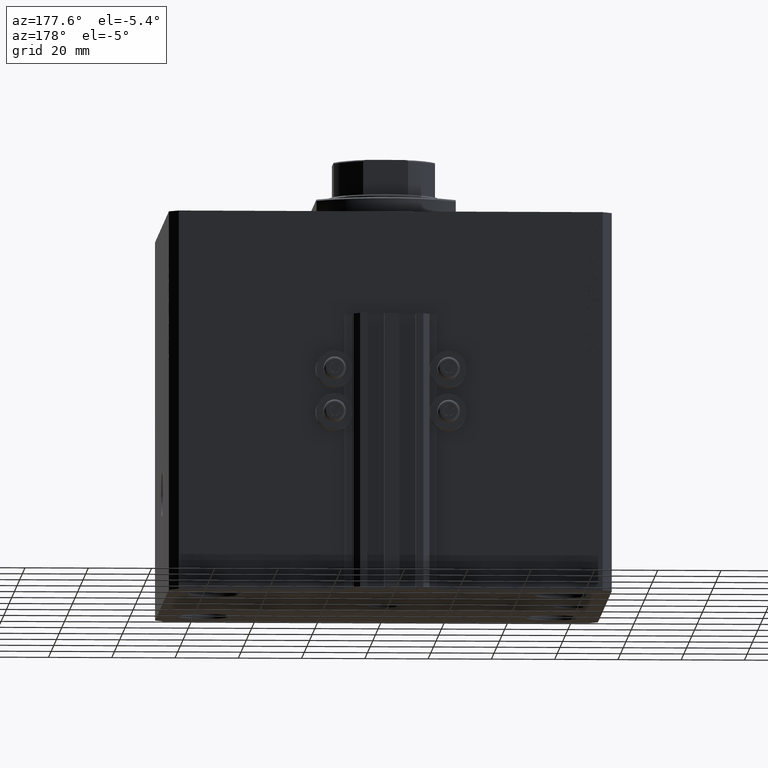
[diagram: clean part render]
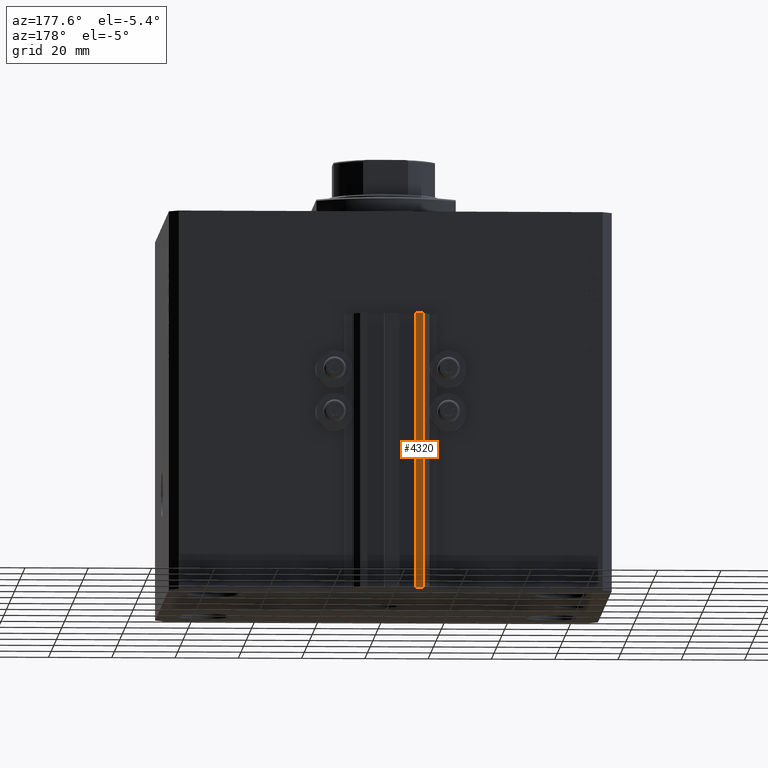
[diagram: same view with one face highlighted and labeled with its STEP entity id]
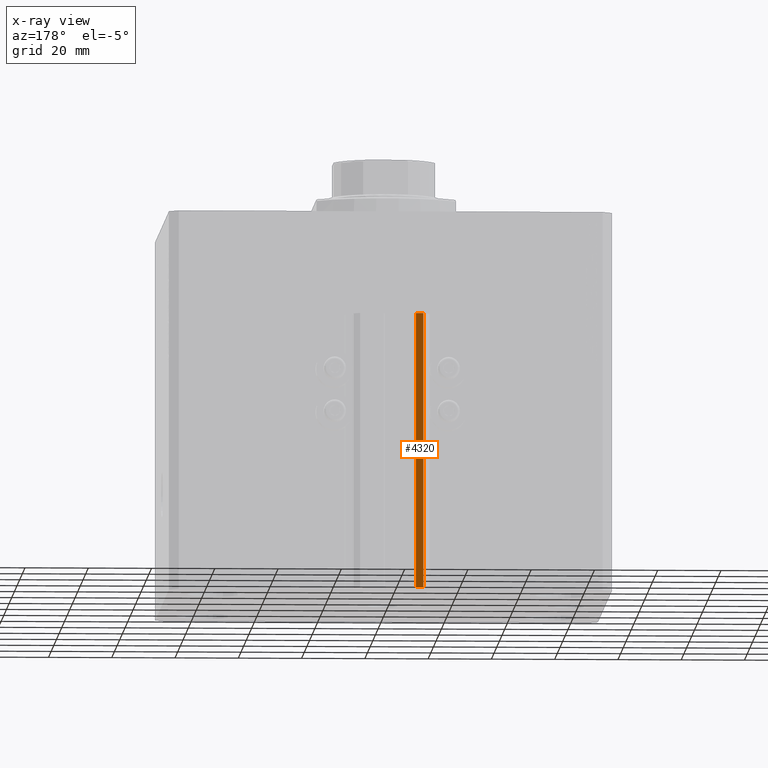
[diagram: x-ray of the same camera — body ghosted, the highlighted face saturated]
A machine part, auxiliary view. The second image highlights one B-rep face of the part: STEP entity #4320.
The next image is the same camera in x-ray: the body ghosted, the highlighted face saturated — about 0% of this face is hidden behind the body in this view.
In plain terms, the highlighted planar face has unit normal (0, 1, 0).
Its self-contained STEP definition (entity closure, byte-faithful):
#337 = ORIENTED_EDGE ( 'NONE', *, *, #26733, .F. ) ;
#1213 = VERTEX_POINT ( 'NONE', #26744 ) ;
#1478 = CARTESIAN_POINT ( 'NONE',  ( -7.650000000000002132, 63.00000000000000000, -120.0000000000000000 ) ) ;
#2463 = PLANE ( 'NONE',  #4058 ) ;
#4058 = AXIS2_PLACEMENT_3D ( 'NONE', #17060, #38637, #46506 ) ;
#4320 = ADVANCED_FACE ( 'NONE', ( #24001 ), #2463, .T. ) ;
#5598 = VECTOR ( 'NONE', #6727, 1000.000000000000000 ) ;
#6342 = ORIENTED_EDGE ( 'NONE', *, *, #41947, .T. ) ;
#6727 = DIRECTION ( 'NONE',  ( -1.000000000000000000, 0.000000000000000000, 0.000000000000000000 ) ) ;
#6992 = CARTESIAN_POINT ( 'NONE',  ( -10.00000000000000000, 63.00000000000000000, -120.0000000000000000 ) ) ;
#9009 = CARTESIAN_POINT ( 'NONE',  ( -7.650000000000002132, 63.00000000000000000, -120.0000000000000000 ) ) ;
#9767 = VECTOR ( 'NONE', #20464, 1000.000000000000000 ) ;
#10730 = EDGE_CURVE ( 'NONE', #28893, #1213, #41723, .T. ) ;
#13906 = LINE ( 'NONE', #35947, #5598 ) ;
#17060 = CARTESIAN_POINT ( 'NONE',  ( -7.650000000000002132, 63.00000000000000000, -120.0000000000000000 ) ) ;
#18675 = VERTEX_POINT ( 'NONE', #6992 ) ;
#19707 = EDGE_CURVE ( 'NONE', #18675, #20657, #38918, .T. ) ;
#19988 = CARTESIAN_POINT ( 'NONE',  ( -7.650000000000002132, 63.00000000000000000, -33.00000000000000000 ) ) ;
#20464 = DIRECTION ( 'NONE',  ( 0.000000000000000000, 0.000000000000000000, 1.000000000000000000 ) ) ;
#20657 = VERTEX_POINT ( 'NONE', #36982 ) ;
#24001 = FACE_OUTER_BOUND ( 'NONE', #39983, .T. ) ;
#25589 = ORIENTED_EDGE ( 'NONE', *, *, #10730, .F. ) ;
#26733 = EDGE_CURVE ( 'NONE', #1213, #20657, #41559, .T. ) ;
#26744 = CARTESIAN_POINT ( 'NONE',  ( -7.650000000000002132, 63.00000000000000000, -33.00000000000000000 ) ) ;
#28893 = VERTEX_POINT ( 'NONE', #9009 ) ;
#31748 = VECTOR ( 'NONE', #42183, 1000.000000000000000 ) ;
#35947 = CARTESIAN_POINT ( 'NONE',  ( -7.650000000000002132, 63.00000000000000000, -120.0000000000000000 ) ) ;
#36982 = CARTESIAN_POINT ( 'NONE',  ( -10.00000000000000000, 63.00000000000000000, -33.00000000000000000 ) ) ;
#38637 = DIRECTION ( 'NONE',  ( 0.000000000000000000, 1.000000000000000000, -0.000000000000000000 ) ) ;
#38688 = CARTESIAN_POINT ( 'NONE',  ( -10.00000000000000000, 63.00000000000000000, -120.0000000000000000 ) ) ;
#38918 = LINE ( 'NONE', #38688, #9767 ) ;
#38930 = VECTOR ( 'NONE', #45610, 1000.000000000000000 ) ;
#39983 = EDGE_LOOP ( 'NONE', ( #337, #25589, #6342, #46530 ) ) ;
#41559 = LINE ( 'NONE', #19988, #38930 ) ;
#41723 = LINE ( 'NONE', #1478, #31748 ) ;
#41947 = EDGE_CURVE ( 'NONE', #28893, #18675, #13906, .T. ) ;
#42183 = DIRECTION ( 'NONE',  ( 0.000000000000000000, 0.000000000000000000, 1.000000000000000000 ) ) ;
#45610 = DIRECTION ( 'NONE',  ( -1.000000000000000000, 0.000000000000000000, 0.000000000000000000 ) ) ;
#46506 = DIRECTION ( 'NONE',  ( 0.000000000000000000, 0.000000000000000000, 1.000000000000000000 ) ) ;
#46530 = ORIENTED_EDGE ( 'NONE', *, *, #19707, .T. ) ;